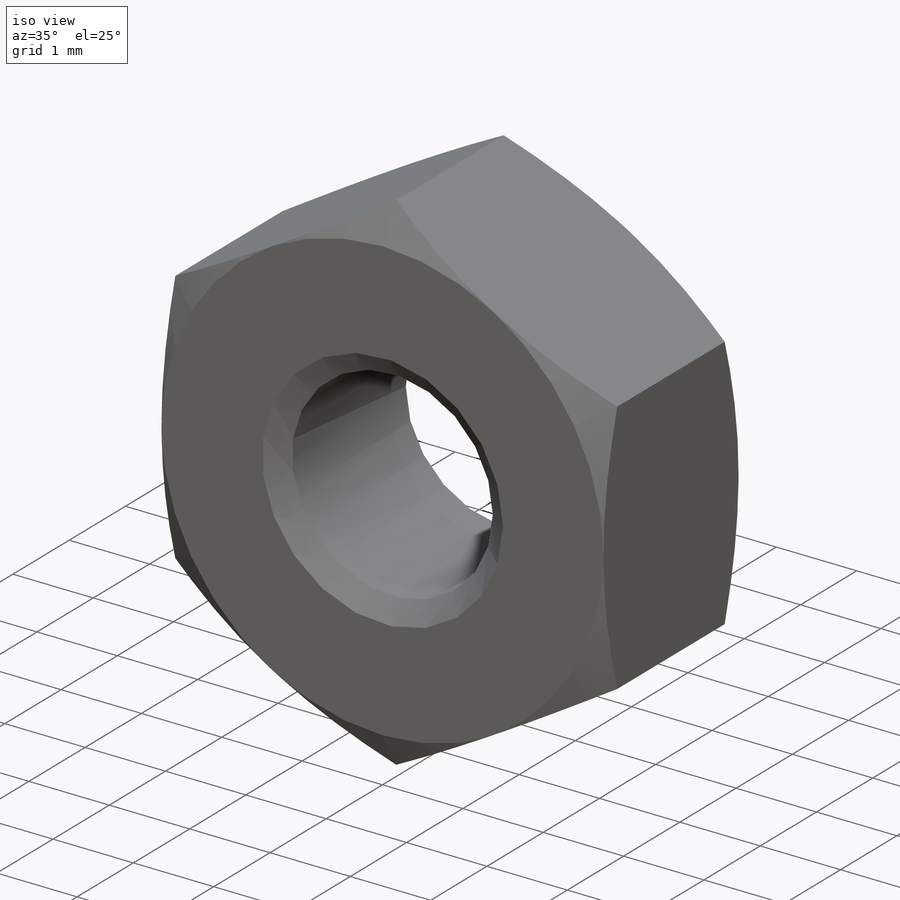
[diagram: iso view]
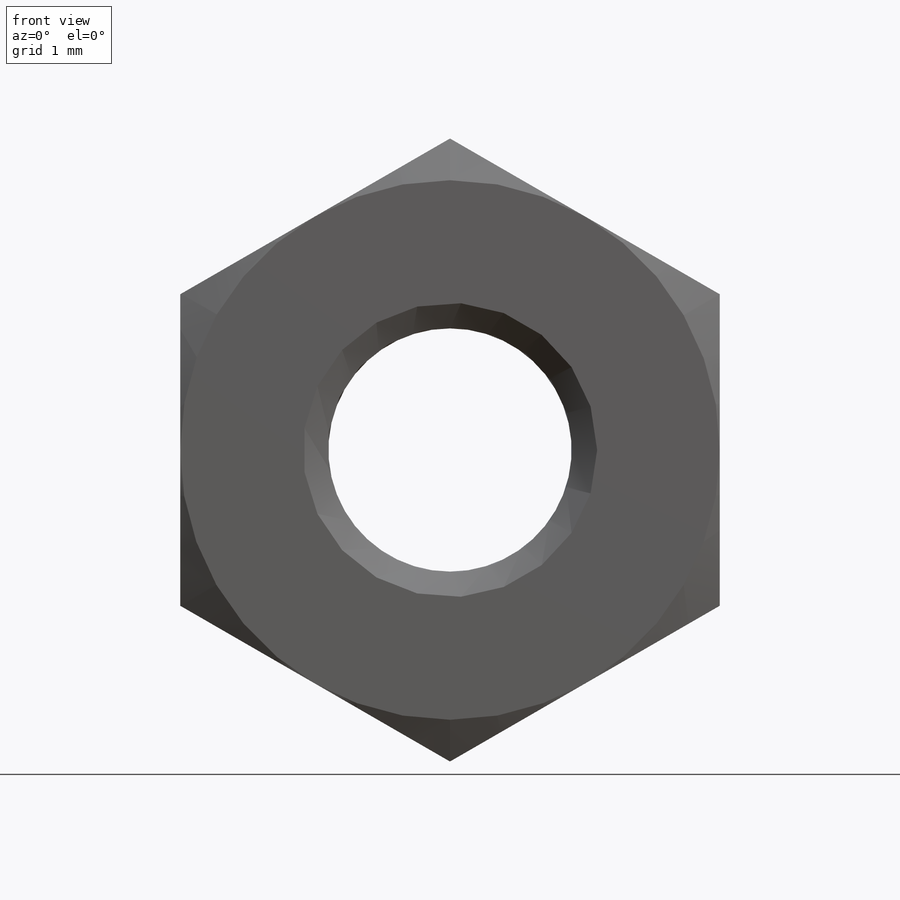
[diagram: front view]
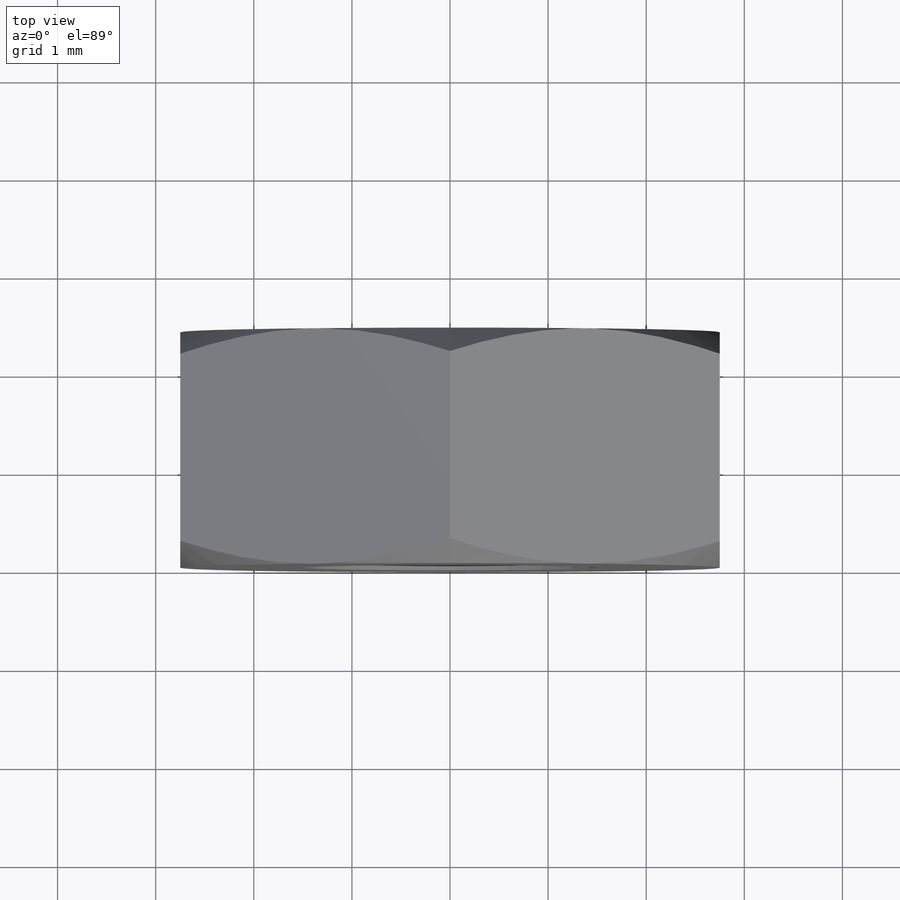
[diagram: top view]
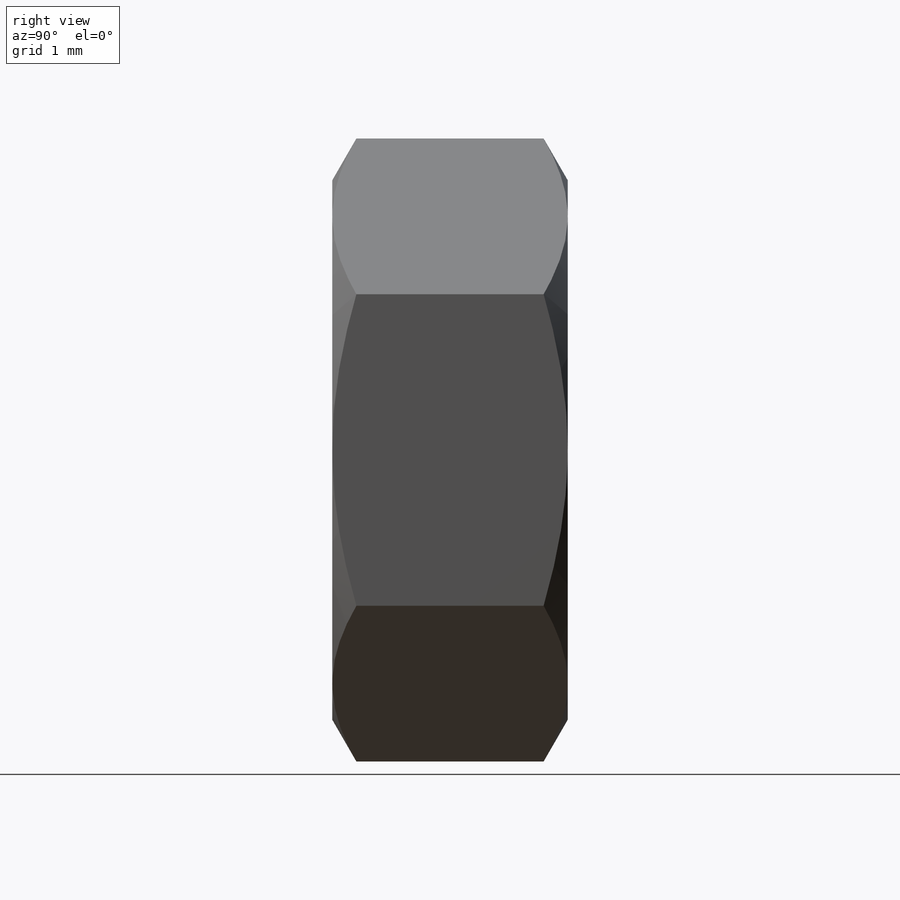
[diagram: right view]
SOLIDWORKS PART (.sldprt)
format: sldprt  version: not decoded by parser v0  size: 580,608 bytes
history: native  units: mm
features: sketch x5, cut_revolve x4, plane x3, material x1, extrude x1, thread x1, pattern_linear x1 (+9 scaffold rows collapsed)
feature tree (25):
  scaffold x9  (default folders/planes/origin — collapsed)
  material  "Material <not specified>"
  plane  "Plane1"
  plane  "Plane2"
  plane  "Plane3"
  sketch  "BaseNutSke"  dims[c1.Tap_drill=2.5mm c1.D1=50.8mm c2.D1=30.0deg c2.D2=~24.797543mm c3.D2=60.0deg c3.D3=50.8mm c4.D3=30.0deg c4.D4=~24.797543mm c5.D4=60.0deg c6.D4=~24.797543mm c7.D4=60.0deg c8.D4=~24.797543mm c9.D4=60.0deg c9.Width_flats=5.5mm c9.D1=~21.475302mm c9.D2=~21.475302mm c10.D1=~21.475302mm c10.D2=2.75mm c10.D3=2.75mm c11.D1=~24.797543mm c12.D1=120.0deg c13.D1=~23.397294mm c14.D1=120.0deg c14.D4=2.75mm]
  extrude  "BaseNut"  [1 undecoded]
  thread  "ThreadCosmetic"  Diameter=3mm Thread_major=3mm  [1 undecoded]
  cut_revolve  "EndChamfer"  [1 undecoded]
  sketch  "Sketch5"
  pattern_linear  "ThdSchPat"  [2 undecoded]
  cut_revolve  "ThreadSchematic"  [1 undecoded]
  sketch  "ThdSchSke"  dims[c1.D1=~4.490128mm c2.D1=90.0deg c3.D1=~4.490128mm c3.VeeAngle=70.0deg c4.D1=19.5834mm c4.SideAngle=55.0deg c5.D1=~4.490128mm c5.SideAngle=55.0deg c5.ThreadDepth=2.54mm c6.ThreadDepth=3.175mm c6.Thread_Major=6.35mm c6.D1=~9.573347mm c6.D2=~9.428305mm c6.OverCut=1.25mm c6.Tap_Drill=2.5mm c6.Advance=1.27mm c6.Thread_major=3.0mm c7.Advance=0.5mm c7.D1=6.35mm c7.D2=0.0254mm c8.D1=0.0254mm c9.D1=360.0deg c9.Num_threads=6.0 c9.Advance=~0.46984mm c9.D2=1.0 c9.D4=50.0mm c10.D1=~8.980256mm c11.D1=315.0deg c12.D1=~8.980256mm c13.D1=45.0deg c13.D2=~8.94581mm c14.D2=~1.952549deg c14.D3=6.35mm c15.D2=25.7048mm c15.D1=~6.352235mm c16.D1=35.0deg c16.D2=12.7mm c16.D3=12.7mm c17.D2=22.5552mm c17.D3=25.4mm c17.D4=12.7mm c18.D3=12.7mm c18.D2=0.0508mm c18.Offset1=25.4254mm c18.ThreadMajor=12.7mm c18.ChamferDepth=0.275mm c18.Offset2=2.4762mm c19.ThreadMajor=1.5mm c19.Offset1=2.4254mm c19.D1=360.0deg c19.Thickness=2.4mm]
  sketch  "Sketch4"  dims[c1.D1=38.1mm c1.Bearing_ht=0.4mm c1.D3=12.7mm c1.D4=10.0mm c1.D5=2.54mm c1.D6=18.8722mm c2.D3=10.0mm c2.D1=2.75mm c2.D2=~3.890588mm c3.D2=~139.242599deg c4.D2=22.5298mm c5.D2=45.0deg c6.D2=~10.392305mm c7.D2=30.0deg]
  cut_revolve  "Bearing-Face"  Angle=360deg
  sketch  "Sketch3"  dims[c1.D1=2.75mm c1.D2=2.4mm c1.D3=12.7mm c1.D4=10.0mm c1.D5=10.9093mm c1.D6=~10.998523mm c2.D6=~179.413404deg c3.D6=~2.539714mm c3.D3=10.0mm c3.D5=9.525mm c3.D2=~10.392305mm c4.D2=30.0deg]
  cut_revolve  "Double-Chamfer"  Angle=360deg
decode coverage: 7 of 12 modeling features carry decoded parameters
note: ~ marks probable driven/reference dimensions
note: 6 parameter values undecoded
summary: no parameter record found for 3 features
note: suppression state not decoded; provenance and decode notes live in map.json
